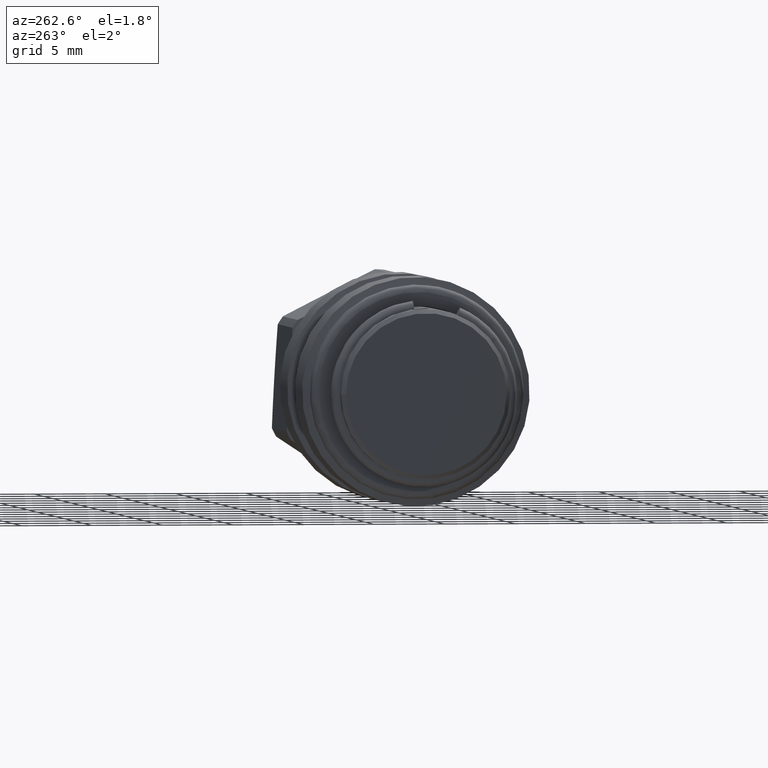
[diagram: clean part render]
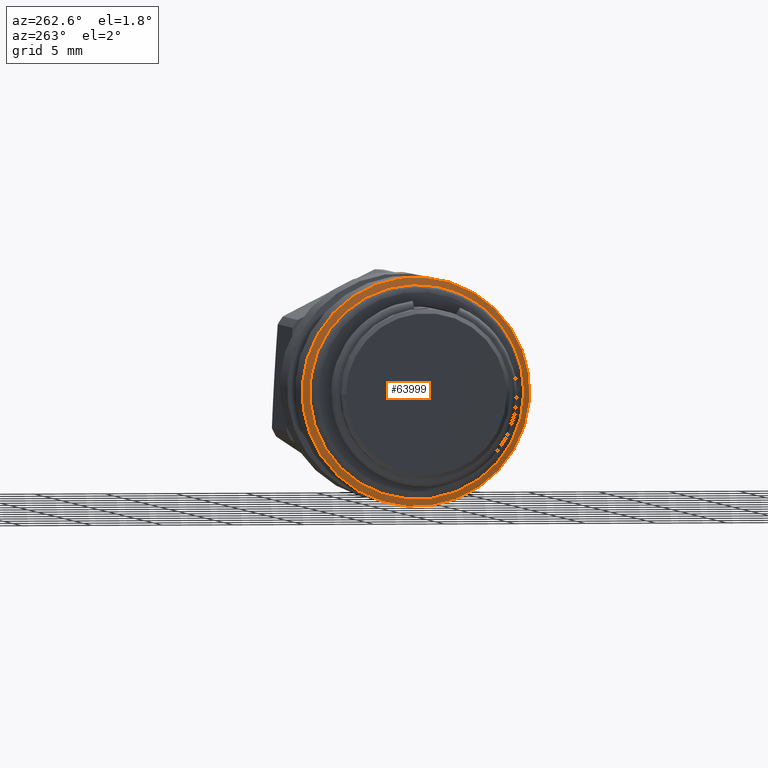
[diagram: same view with one face highlighted and labeled with its STEP entity id]
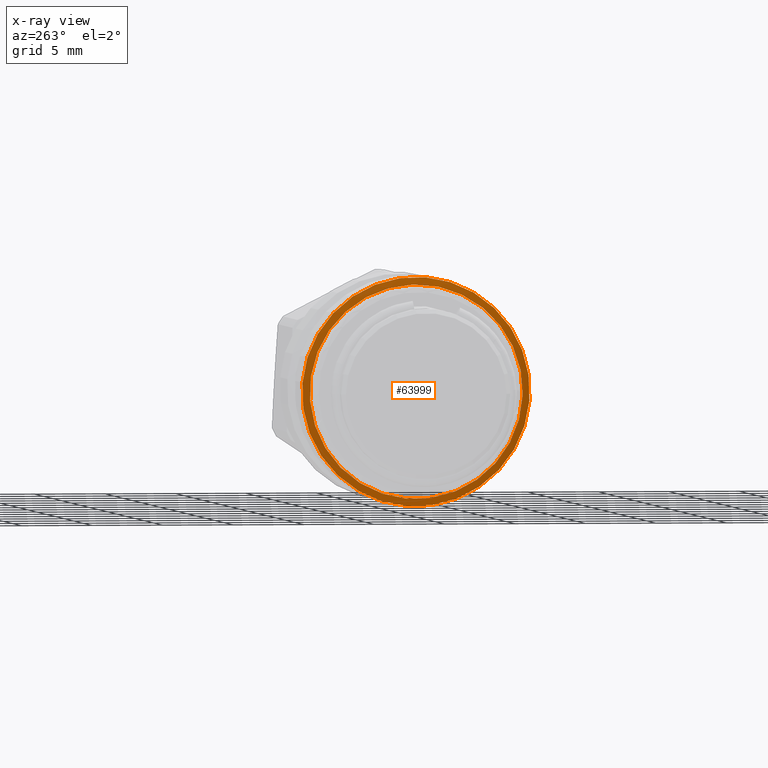
[diagram: x-ray of the same camera — body ghosted, the highlighted face saturated]
A machine part, auxiliary view. The second image highlights one B-rep face of the part: STEP entity #63999.
The next image is the same camera in x-ray: the body ghosted, the highlighted face saturated — about 0% of this face is hidden behind the body in this view.
In plain terms, the highlighted conical surface has half-angle 75 deg.
Its self-contained STEP definition (entity closure, byte-faithful):
#63968=CARTESIAN_POINT('',(5.63067332602634,-1.139941101350958,-7.994132803841251));
#63969=VERTEX_POINT('',#63968);
#63970=CARTESIAN_POINT('',(5.63067332602634,0.0,0.0));
#63971=DIRECTION('',(1.0,0.0,0.0));
#63972=DIRECTION('',(0.0,-0.141169176637889,-0.989985486543808));
#63973=AXIS2_PLACEMENT_3D('',#63970,#63971,#63972);
#63974=CIRCLE('',#63973,8.074999999999999);
#63975=EDGE_CURVE('',#63969,#63969,#63974,.T.);
#63980=CARTESIAN_POINT('',(5.56033666301317,0.0,0.0));
#63981=DIRECTION('',(1.0,0.0,0.0));
#63982=DIRECTION('',(0.0,-0.14116917663789,-0.989985486543808));
#63983=AXIS2_PLACEMENT_3D('',#63980,#63981,#63982);
#63984=CONICAL_SURFACE('',#63983,7.8125,75.000000000000014);
#63985=ORIENTED_EDGE('',*,*,#63975,.F.);
#63986=EDGE_LOOP('',(#63985));
#63987=FACE_OUTER_BOUND('',#63986,.T.);
#63988=CARTESIAN_POINT('',(5.49,-1.065827283616066,-7.474390423405751));
#63989=VERTEX_POINT('',#63988);
#63990=CARTESIAN_POINT('',(5.49,0.0,0.0));
#63991=DIRECTION('',(1.0,0.0,0.0));
#63992=DIRECTION('',(0.0,-0.141169176637889,-0.989985486543808));
#63993=AXIS2_PLACEMENT_3D('',#63990,#63991,#63992);
#63994=CIRCLE('',#63993,7.55);
#63995=EDGE_CURVE('',#63989,#63989,#63994,.T.);
#63996=ORIENTED_EDGE('',*,*,#63995,.T.);
#63997=EDGE_LOOP('',(#63996));
#63998=FACE_BOUND('',#63997,.T.);
#63999=ADVANCED_FACE('',(#63987,#63998),#63984,.T.);